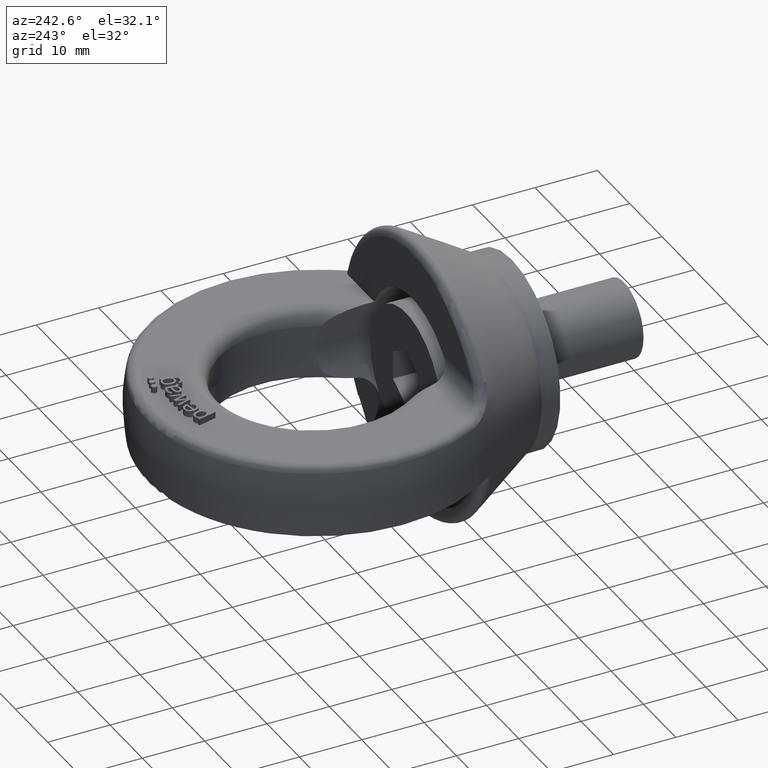
[diagram: clean part render]
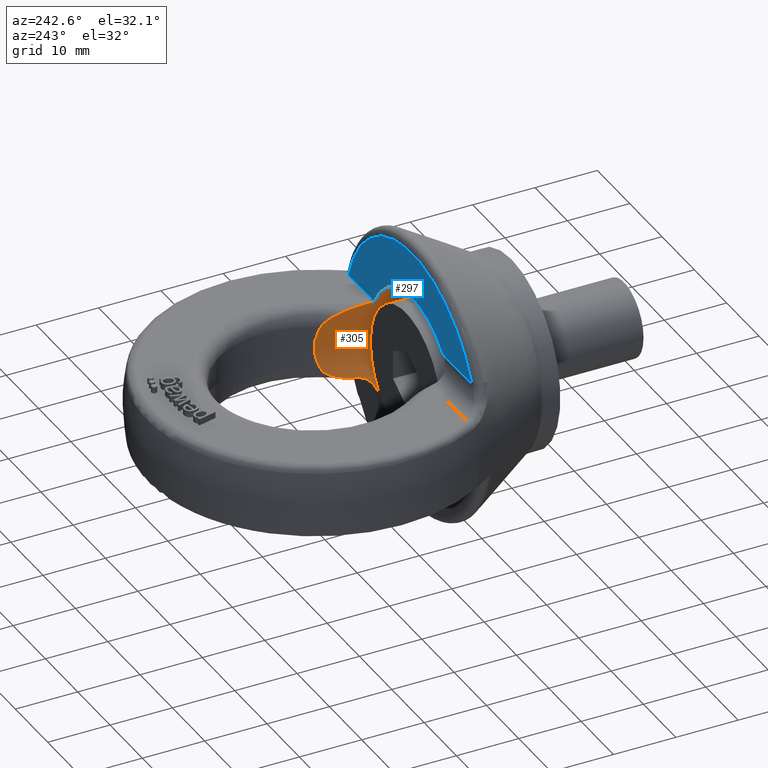
[diagram: same view with the hole feature highlighted: cylindrical wall and planar end face, labeled with their STEP entity ids]
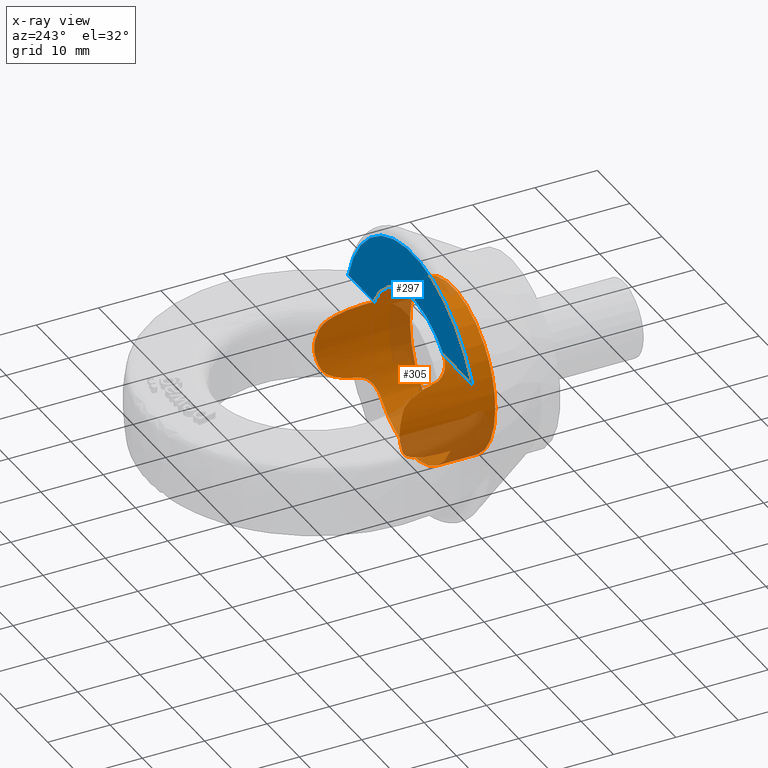
[diagram: x-ray of the same camera — body ghosted, the hole faces saturated]
A machine part, auxiliary view. The highlighted faces form one hole feature of diameter 26.4034 mm: the cylindrical wall (entity #305, orange) and its adjacent planar end face (entity #297, blue) — they share a circular edge in the B-rep.
The next image is the same camera in x-ray (body ghosted, the hole faces saturated) — the bore reads through the body.
Wall:
#114=CYLINDRICAL_SURFACE('',#3229,13.2017059221718);
#289=ELLIPSE('',#3200,25.7248955804606,13.2017059221718);
#290=ELLIPSE('',#3217,25.7248955804606,13.2017059221718);
#291=ELLIPSE('',#3226,25.7248955804606,13.2017059221718);
#292=ELLIPSE('',#3228,25.7248955804606,13.2017059221718);
#305=ADVANCED_FACE('',(#636,#637),#114,.F.);
#576=CIRCLE('',#3203,13.2017059221718);
#588=CIRCLE('',#3223,13.2017059221718);
#590=CIRCLE('',#3227,13.2017059221718);
#636=FACE_BOUND('',#703,.T.);
#637=FACE_BOUND('',#704,.T.);
#703=EDGE_LOOP('',(#1438));
#704=EDGE_LOOP('',(#1439,#1440,#1441,#1442,#1443,#1444,#1445,#1446,#1447,
#1448,#1449,#1450,#1451,#1452,#1453,#1454,#1455,#1456));
#918=LINE('',#4118,#1112);
#936=LINE('',#4390,#1130);
#1112=VECTOR('',#3394,1.);
#1130=VECTOR('',#3472,1.);
#1438=ORIENTED_EDGE('',*,*,#2596,.F.);
#1439=ORIENTED_EDGE('',*,*,#2544,.F.);
#1440=ORIENTED_EDGE('',*,*,#2598,.T.);
#1441=ORIENTED_EDGE('',*,*,#2592,.T.);
#1442=ORIENTED_EDGE('',*,*,#2591,.T.);
#1443=ORIENTED_EDGE('',*,*,#2599,.T.);
#1444=ORIENTED_EDGE('',*,*,#2600,.T.);
#1445=ORIENTED_EDGE('',*,*,#2601,.T.);
#1446=ORIENTED_EDGE('',*,*,#2602,.T.);
#1447=ORIENTED_EDGE('',*,*,#2603,.T.);
#1448=ORIENTED_EDGE('',*,*,#2604,.F.);
#1449=ORIENTED_EDGE('',*,*,#2605,.T.);
#1450=ORIENTED_EDGE('',*,*,#2606,.T.);
#1451=ORIENTED_EDGE('',*,*,#2587,.T.);
#1452=ORIENTED_EDGE('',*,*,#2568,.T.);
#1453=ORIENTED_EDGE('',*,*,#2607,.T.);
#1454=ORIENTED_EDGE('',*,*,#2608,.T.);
#1455=ORIENTED_EDGE('',*,*,#2609,.T.);
#1456=ORIENTED_EDGE('',*,*,#2571,.T.);
#2251=VERTEX_POINT('',#4117);
#2252=VERTEX_POINT('',#4119);
#2273=VERTEX_POINT('',#4256);
#2275=VERTEX_POINT('',#4259);
#2276=VERTEX_POINT('',#4263);
#2289=VERTEX_POINT('',#4319);
#2291=VERTEX_POINT('',#4328);
#2294=VERTEX_POINT('',#4334);
#2295=VERTEX_POINT('',#4343);
#2298=VERTEX_POINT('',#4353);
#2300=VERTEX_POINT('',#4366);
#2301=VERTEX_POINT('',#4375);
#2302=VERTEX_POINT('',#4380);
#2303=VERTEX_POINT('',#4387);
#2304=VERTEX_POINT('',#4389);
#2305=VERTEX_POINT('',#4391);
#2306=VERTEX_POINT('',#4400);
#2307=VERTEX_POINT('',#4410);
#2308=VERTEX_POINT('',#4415);
#2544=EDGE_CURVE('',#2251,#2252,#918,.T.);
#2568=EDGE_CURVE('',#2273,#2275,#289,.T.);
#2571=EDGE_CURVE('',#2276,#2252,#576,.T.);
#2587=EDGE_CURVE('',#2291,#2273,#2976,.T.);
#2591=EDGE_CURVE('',#2289,#2294,#2977,.T.);
#2592=EDGE_CURVE('',#2295,#2289,#290,.T.);
#2596=EDGE_CURVE('',#2298,#2298,#588,.T.);
#2598=EDGE_CURVE('',#2251,#2295,#2978,.T.);
#2599=EDGE_CURVE('',#2294,#2300,#291,.T.);
#2600=EDGE_CURVE('',#2300,#2301,#2979,.T.);
#2601=EDGE_CURVE('',#2301,#2302,#2980,.T.);
#2602=EDGE_CURVE('',#2302,#2303,#2981,.T.);
#2603=EDGE_CURVE('',#2303,#2304,#590,.T.);
#2604=EDGE_CURVE('',#2305,#2304,#936,.T.);
#2605=EDGE_CURVE('',#2305,#2306,#2982,.T.);
#2606=EDGE_CURVE('',#2306,#2291,#292,.T.);
#2607=EDGE_CURVE('',#2275,#2307,#2983,.T.);
#2608=EDGE_CURVE('',#2307,#2308,#2984,.T.);
#2609=EDGE_CURVE('',#2308,#2276,#2985,.T.);
#2976=B_SPLINE_CURVE_WITH_KNOTS('',3,(#4322,#4323,#4324,#4325,#4326,#4327),
 .UNSPECIFIED.,.F.,.F.,(4,2,4),(0.,0.5,1.),.UNSPECIFIED.);
#2977=B_SPLINE_CURVE_WITH_KNOTS('',3,(#4335,#4336,#4337,#4338,#4339,#4340),
 .UNSPECIFIED.,.F.,.F.,(4,2,4),(0.,0.5,1.),.UNSPECIFIED.);
#2978=B_SPLINE_CURVE_WITH_KNOTS('',3,(#4357,#4358,#4359,#4360,#4361,#4362,
#4363,#4364),.UNSPECIFIED.,.F.,.F.,(4,2,2,4),(0.,0.500000000000001,0.75,
1.),.UNSPECIFIED.);
#2979=B_SPLINE_CURVE_WITH_KNOTS('',3,(#4367,#4368,#4369,#4370,#4371,#4372,
#4373,#4374),.UNSPECIFIED.,.F.,.F.,(4,2,2,4),(0.,0.25,0.5,1.),
 .UNSPECIFIED.);
#2980=B_SPLINE_CURVE_WITH_KNOTS('',3,(#4376,#4377,#4378,#4379),
 .UNSPECIFIED.,.F.,.F.,(4,4),(0.,1.),.UNSPECIFIED.);
#2981=B_SPLINE_CURVE_WITH_KNOTS('',3,(#4381,#4382,#4383,#4384,#4385,#4386),
 .UNSPECIFIED.,.F.,.F.,(4,2,4),(0.,0.5,1.),.UNSPECIFIED.);
#2982=B_SPLINE_CURVE_WITH_KNOTS('',3,(#4392,#4393,#4394,#4395,#4396,#4397,
#4398,#4399),.UNSPECIFIED.,.F.,.F.,(4,2,2,4),(0.,0.500000000000001,0.75,
1.),.UNSPECIFIED.);
#2983=B_SPLINE_CURVE_WITH_KNOTS('',3,(#4402,#4403,#4404,#4405,#4406,#4407,
#4408,#4409),.UNSPECIFIED.,.F.,.F.,(4,2,2,4),(0.,0.25,0.5,1.),
 .UNSPECIFIED.);
#2984=B_SPLINE_CURVE_WITH_KNOTS('',3,(#4411,#4412,#4413,#4414),
 .UNSPECIFIED.,.F.,.F.,(4,4),(0.,1.),.UNSPECIFIED.);
#2985=B_SPLINE_CURVE_WITH_KNOTS('',3,(#4416,#4417,#4418,#4419,#4420,#4421),
 .UNSPECIFIED.,.F.,.F.,(4,2,4),(0.,0.5,1.),.UNSPECIFIED.);
#3200=AXIS2_PLACEMENT_3D('',#4260,#3411,#3412);
#3203=AXIS2_PLACEMENT_3D('',#4266,#3418,#3419);
#3217=AXIS2_PLACEMENT_3D('',#4342,#3449,#3450);
#3223=AXIS2_PLACEMENT_3D('',#4352,#3462,#3463);
#3226=AXIS2_PLACEMENT_3D('',#4365,#3468,#3469);
#3227=AXIS2_PLACEMENT_3D('',#4388,#3470,#3471);
#3228=AXIS2_PLACEMENT_3D('',#4401,#3473,#3474);
#3229=AXIS2_PLACEMENT_3D('',#4422,#3475,#3476);
#3394=DIRECTION('',(0.,-1.,0.));
#3411=DIRECTION('',(0.858276265611807,0.513187930379751,0.));
#3412=DIRECTION('',(-0.513187930379751,0.858276265611807,0.));
#3418=DIRECTION('',(-4.38613491528481E-16,1.,0.));
#3419=DIRECTION('',(-1.,-5.25605853123392E-16,0.));
#3449=DIRECTION('',(-0.858276265611807,0.51318793037975,0.));
#3450=DIRECTION('',(0.51318793037975,0.858276265611807,0.));
#3462=DIRECTION('',(-4.38613491528481E-16,1.,0.));
#3463=DIRECTION('',(-1.,-3.94204389842544E-16,0.));
#3468=DIRECTION('',(-0.858276265611807,0.513187930379751,-2.01086467128961E-15));
#3469=DIRECTION('',(0.513187930379751,0.858276265611807,1.20235350816472E-15));
#3470=DIRECTION('',(4.38613491528481E-16,1.,1.02763225525862E-30));
#3471=DIRECTION('',(1.,-5.25605853123392E-16,2.34291072916505E-15));
#3472=DIRECTION('',(0.,-1.,0.));
#3473=DIRECTION('',(0.858276265611807,0.51318793037975,2.01086467128961E-15));
#3474=DIRECTION('',(-0.51318793037975,0.858276265611807,-1.20235350816472E-15));
#3475=DIRECTION('',(0.,1.,0.));
#3476=DIRECTION('',(0.,0.,1.));
#4117=CARTESIAN_POINT('',(11.7594659426143,17.7612990239723,6.00000000000001));
#4118=CARTESIAN_POINT('',(11.7594659426143,8.75,6.00000000000001));
#4119=CARTESIAN_POINT('',(11.7594659426143,16.,6.00000000000001));
#4256=CARTESIAN_POINT('',(-12.8741439841771,24.3021810443038,2.92257693315024));
#4259=CARTESIAN_POINT('',(-12.7013794233345,24.013242600252,3.6));
#4260=CARTESIAN_POINT('',(0.,2.7709415751453,0.));
#4263=CARTESIAN_POINT('',(-9.65841805139461,16.,9.00000000000001));
#4266=CARTESIAN_POINT('',(0.,16.,0.));
#4319=CARTESIAN_POINT('',(12.8741439841771,24.3021810443037,2.9225769331503));
#4322=CARTESIAN_POINT('',(-12.8741439841771,24.3021810443038,-2.92257693315028));
#4323=CARTESIAN_POINT('',(-13.0844347680556,24.6538798626027,-1.99623217230275));
#4324=CARTESIAN_POINT('',(-13.201725408098,24.8785923968036,-1.00248702548808));
#4325=CARTESIAN_POINT('',(-13.2016864312589,24.8785201416841,1.00300017836821));
#4326=CARTESIAN_POINT('',(-13.0846873376031,24.6543022701365,1.99511958680195));
#4327=CARTESIAN_POINT('',(-12.8741439841771,24.3021810443038,2.92257693315028));
#4328=CARTESIAN_POINT('',(-12.8741439841771,24.3021810443037,-2.92257693315033));
#4334=CARTESIAN_POINT('',(12.8741439841771,24.3021810443038,-2.92257693315021));
#4335=CARTESIAN_POINT('',(12.8741439841771,24.3021810443038,2.92257693315026));
#4336=CARTESIAN_POINT('',(13.0844347680556,24.6538798626027,1.99623217230273));
#4337=CARTESIAN_POINT('',(13.201725408098,24.8785923968036,1.00248702548809));
#4338=CARTESIAN_POINT('',(13.2016864312589,24.8785201416841,-1.0030001783682));
#4339=CARTESIAN_POINT('',(13.0846873376031,24.6543022701365,-1.99511958680194));
#4340=CARTESIAN_POINT('',(12.8741439841771,24.3021810443038,-2.92257693315026));
#4342=CARTESIAN_POINT('',(0.,2.77094157514529,0.));
#4343=CARTESIAN_POINT('',(12.7013794233345,24.013242600252,3.60000000000001));
#4352=CARTESIAN_POINT('',(0.,9.5,0.));
#4353=CARTESIAN_POINT('',(-13.2017059221718,9.49999999999999,0.));
#4357=CARTESIAN_POINT('',(11.7594659426143,17.7612990239723,6.00000000000001));
#4358=CARTESIAN_POINT('',(11.7594659426143,18.9399794949683,6.));
#4359=CARTESIAN_POINT('',(11.8638495852115,20.0828510017652,5.80407003061128));
#4360=CARTESIAN_POINT('',(12.1060531782486,21.7445981071606,5.26942073308231));
#4361=CARTESIAN_POINT('',(12.2020550946442,22.28468596738,5.04879387085334));
#4362=CARTESIAN_POINT('',(12.4248509906776,23.277723741531,4.47253238585889));
#4363=CARTESIAN_POINT('',(12.5531101965412,23.7652711442921,4.12311769619637));
#4364=CARTESIAN_POINT('',(12.7013794233345,24.0132426002521,3.60000000000001));
#4365=CARTESIAN_POINT('',(0.,2.7709415751453,0.));
#4366=CARTESIAN_POINT('',(12.7013794233345,24.013242600252,-3.59999999999997));
#4367=CARTESIAN_POINT('',(12.7013794233345,24.013242600252,-3.59999999999998));
#4368=CARTESIAN_POINT('',(12.5878203865866,23.8233218709895,-4.00065455907878));
#4369=CARTESIAN_POINT('',(12.4859800618077,23.4830216381481,-4.29600101889356));
#4370=CARTESIAN_POINT('',(12.3034426693426,22.7622703236097,-4.79381073264179));
#4371=CARTESIAN_POINT('',(12.221753190704,22.365421076988,-4.99481586069113));
#4372=CARTESIAN_POINT('',(12.0040498156497,21.1426828967054,-5.50685176881209));
#4373=CARTESIAN_POINT('',(11.8940146840373,20.2883945210338,-5.7306970246306));
#4374=CARTESIAN_POINT('',(11.8259730796086,19.4030921400738,-5.86782753460577));
#4375=CARTESIAN_POINT('',(11.8259730796086,19.4030921400738,-5.86782753460578));
#4376=CARTESIAN_POINT('',(11.8259730796086,19.4030921400738,-5.86782753460578));
#4377=CARTESIAN_POINT('',(11.7966448878122,19.0214974048432,-5.92693533977093));
#4378=CARTESIAN_POINT('',(11.7615349898294,18.6410821693623,-5.99687268877823));
#4379=CARTESIAN_POINT('',(11.7128239965569,18.268496191996,-6.09054950568398));
#4380=CARTESIAN_POINT('',(11.7128239965569,18.268496191996,-6.09054950568398));
#4381=CARTESIAN_POINT('',(11.7128239965569,18.268496191996,-6.09054950568398));
#4382=CARTESIAN_POINT('',(11.6173034764547,17.537868381932,-6.27424640182969));
#4383=CARTESIAN_POINT('',(11.3693720143032,16.9153961649325,-6.74195030575937));
#4384=CARTESIAN_POINT('',(10.6439656850408,16.1552896275914,-7.83725133070414));
#4385=CARTESIAN_POINT('',(10.1780426529183,16.,-8.44236092985502));
#4386=CARTESIAN_POINT('',(9.65841805139463,16.,-8.99999999999999));
#4387=CARTESIAN_POINT('',(9.65841805139463,16.,-8.99999999999999));
#4388=CARTESIAN_POINT('',(0.,16.,0.));
#4389=CARTESIAN_POINT('',(-11.7594659426143,16.,-6.00000000000003));
#4390=CARTESIAN_POINT('',(-11.7594659426143,8.75,-6.00000000000003));
#4391=CARTESIAN_POINT('',(-11.7594659426143,17.7612990239723,-6.00000000000003));
#4392=CARTESIAN_POINT('',(-11.7594659426143,17.7612990239723,-6.00000000000003));
#4393=CARTESIAN_POINT('',(-11.7594659426143,18.9399794949683,-6.00000000000002));
#4394=CARTESIAN_POINT('',(-11.8638495852115,20.0828510017652,-5.80407003061131));
#4395=CARTESIAN_POINT('',(-12.1060531782486,21.7445981071606,-5.26942073308234));
#4396=CARTESIAN_POINT('',(-12.2020550946442,22.28468596738,-5.04879387085337));
#4397=CARTESIAN_POINT('',(-12.4248509906776,23.277723741531,-4.47253238585892));
#4398=CARTESIAN_POINT('',(-12.5531101965411,23.7652711442921,-4.1231176961964));
#4399=CARTESIAN_POINT('',(-12.7013794233345,24.0132426002521,-3.60000000000004));
#4400=CARTESIAN_POINT('',(-12.7013794233345,24.013242600252,-3.60000000000004));
#4401=CARTESIAN_POINT('',(0.,2.77094157514529,0.));
#4402=CARTESIAN_POINT('',(-12.7013794233345,24.013242600252,3.60000000000001));
#4403=CARTESIAN_POINT('',(-12.5878203865866,23.8233218709895,4.00065455907881));
#4404=CARTESIAN_POINT('',(-12.4859800618076,23.4830216381481,4.29600101889359));
#4405=CARTESIAN_POINT('',(-12.3034426693426,22.7622703236097,4.79381073264182));
#4406=CARTESIAN_POINT('',(-12.221753190704,22.365421076988,4.99481586069115));
#4407=CARTESIAN_POINT('',(-12.0040498156497,21.1426828967054,5.50685176881212));
#4408=CARTESIAN_POINT('',(-11.8940146840373,20.2883945210338,5.73069702463063));
#4409=CARTESIAN_POINT('',(-11.8259730796086,19.4030921400738,5.8678275346058));
#4410=CARTESIAN_POINT('',(-11.8259730796086,19.4030921400738,5.86782753460581));
#4411=CARTESIAN_POINT('',(-11.8259730796086,19.4030921400738,5.86782753460581));
#4412=CARTESIAN_POINT('',(-11.7966448878122,19.0214974048432,5.92693533977096));
#4413=CARTESIAN_POINT('',(-11.7615349898294,18.6410821693623,5.99687268877826));
#4414=CARTESIAN_POINT('',(-11.7128239965568,18.268496191996,6.09054950568401));
#4415=CARTESIAN_POINT('',(-11.7128239965568,18.268496191996,6.09054950568401));
#4416=CARTESIAN_POINT('',(-11.7128239965568,18.268496191996,6.09054950568401));
#4417=CARTESIAN_POINT('',(-11.6173034764547,17.537868381932,6.27424640182972));
#4418=CARTESIAN_POINT('',(-11.3693720143032,16.9153961649325,6.74195030575939));
#4419=CARTESIAN_POINT('',(-10.6439656850408,16.1552896275914,7.83725133070416));
#4420=CARTESIAN_POINT('',(-10.1780426529183,16.,8.44236092985504));
#4421=CARTESIAN_POINT('',(-9.65841805139461,16.,9.00000000000001));
#4422=CARTESIAN_POINT('',(0.,8.75,0.));
End face:
#132=FACE_OUTER_BOUND('',#691,.T.);
#297=ADVANCED_FACE('',(#132),#479,.T.);
#479=PLANE('',#3204);
#575=CIRCLE('',#3202,20.657406330606);
#576=CIRCLE('',#3203,13.2017059221718);
#691=EDGE_LOOP('',(#1402,#1403,#1404,#1405));
#919=LINE('',#4120,#1113);
#931=LINE('',#4262,#1125);
#1113=VECTOR('',#3395,1.);
#1125=VECTOR('',#3415,1.);
#1402=ORIENTED_EDGE('',*,*,#2569,.T.);
#1403=ORIENTED_EDGE('',*,*,#2570,.T.);
#1404=ORIENTED_EDGE('',*,*,#2545,.T.);
#1405=ORIENTED_EDGE('',*,*,#2571,.F.);
#2252=VERTEX_POINT('',#4119);
#2253=VERTEX_POINT('',#4121);
#2276=VERTEX_POINT('',#4263);
#2277=VERTEX_POINT('',#4264);
#2545=EDGE_CURVE('',#2253,#2252,#919,.T.);
#2569=EDGE_CURVE('',#2276,#2277,#931,.T.);
#2570=EDGE_CURVE('',#2277,#2253,#575,.T.);
#2571=EDGE_CURVE('',#2276,#2252,#576,.T.);
#3202=AXIS2_PLACEMENT_3D('',#4265,#3416,#3417);
#3203=AXIS2_PLACEMENT_3D('',#4266,#3418,#3419);
#3204=AXIS2_PLACEMENT_3D('',#4267,#3420,#3421);
#3395=DIRECTION('',(-1.,0.,0.));
#3415=DIRECTION('',(-1.,-4.38613491528481E-16,5.02463381551158E-32));
#3416=DIRECTION('',(-4.38613491528481E-16,1.,0.));
#3417=DIRECTION('',(-1.,-5.03855164064806E-16,0.));
#3418=DIRECTION('',(-4.38613491528481E-16,1.,0.));
#3419=DIRECTION('',(-1.,-5.25605853123392E-16,0.));
#3420=DIRECTION('',(-4.38613491528481E-16,1.,0.));
#3421=DIRECTION('',(-1.,-4.37150315946155E-16,0.));
#4119=CARTESIAN_POINT('',(11.7594659426143,16.,6.00000000000001));
#4120=CARTESIAN_POINT('',(55.,16.,6.00000000000001));
#4121=CARTESIAN_POINT('',(19.7668519574502,16.,6.00000000000001));
#4262=CARTESIAN_POINT('',(-7.91003245217853,16.,9.00000000000001));
#4263=CARTESIAN_POINT('',(-9.65841805139461,16.,9.00000000000001));
#4264=CARTESIAN_POINT('',(-18.5937741275881,16.,9.00000000000001));
#4265=CARTESIAN_POINT('',(-2.01761351647714E-13,16.,0.));
#4266=CARTESIAN_POINT('',(0.,16.,0.));
#4267=CARTESIAN_POINT('',(-7.91003245217853,16.,30.25));